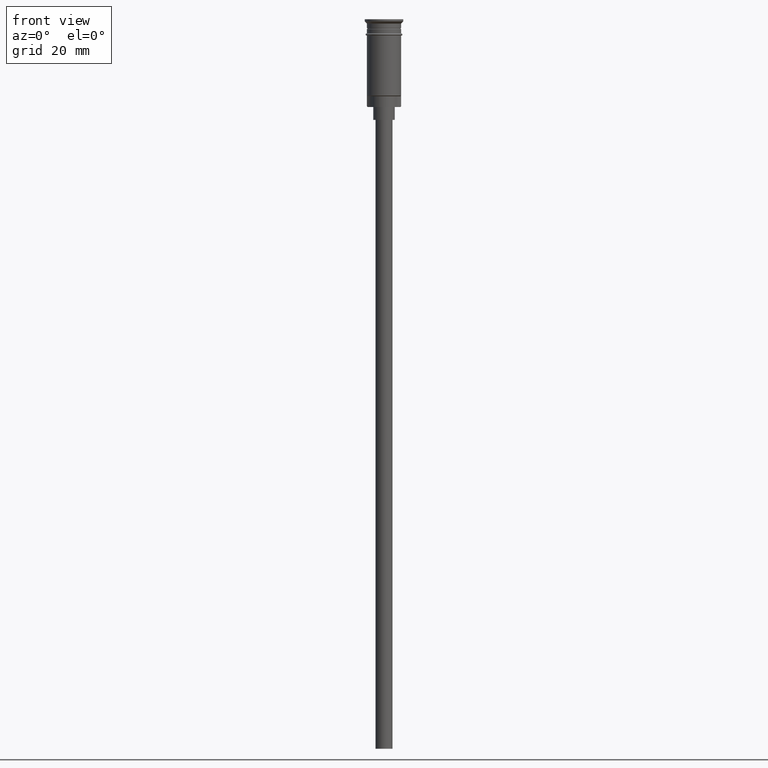
[diagram: clean part render]
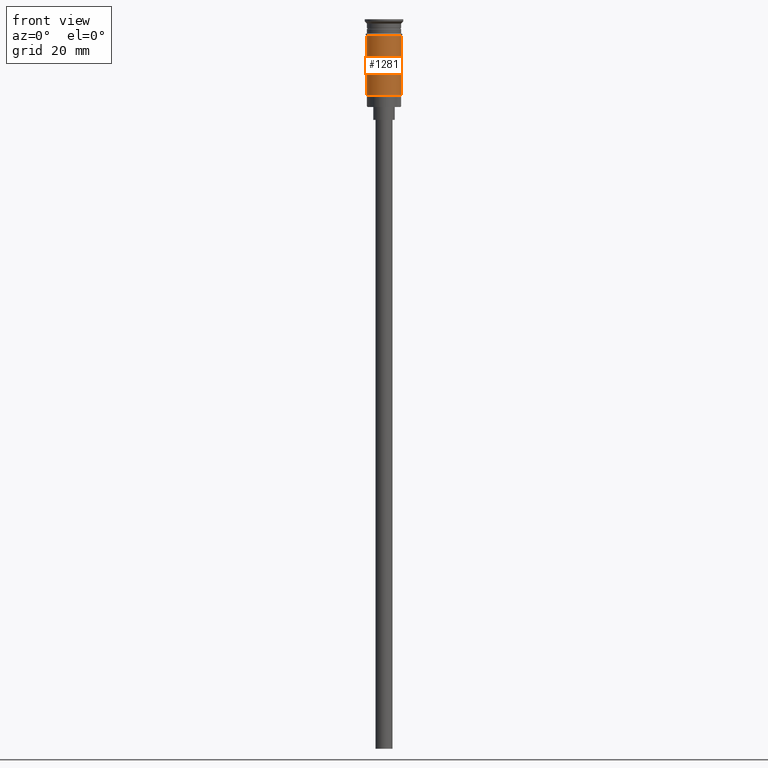
[diagram: same view with one face highlighted and labeled with its STEP entity id]
A machine part, front view. The second image highlights one B-rep face of the part: STEP entity #1281.
In plain terms, the highlighted cylindrical surface (edge-blend (fillet) strip) has radius 4 mm, axis along (-0, -0, 1).
Its self-contained STEP definition (entity closure, byte-faithful):
#16 = EDGE_CURVE ( 'NONE', #98, #976, #591, .T. ) ;
#96 = CARTESIAN_POINT ( 'NONE',  ( 4.000000000000000000, 4.898587196589412829E-16, -17.79999999999998295 ) ) ;
#98 = VERTEX_POINT ( 'NONE', #96 ) ;
#123 = CARTESIAN_POINT ( 'NONE',  ( -3.999999999999997335, 0.000000000000000000, -17.79999999999998295 ) ) ;
#199 = AXIS2_PLACEMENT_3D ( 'NONE', #843, #344, #454 ) ;
#239 = CARTESIAN_POINT ( 'NONE',  ( 0.000000000000000000, 0.000000000000000000, -17.79999999999998295 ) ) ;
#251 = FACE_OUTER_BOUND ( 'NONE', #1041, .T. ) ;
#254 = CIRCLE ( 'NONE', #199, 4.000000000000000000 ) ;
#303 = VERTEX_POINT ( 'NONE', #914 ) ;
#313 = CARTESIAN_POINT ( 'NONE',  ( 0.000000000000000000, 0.000000000000000000, 0.000000000000000000 ) ) ;
#335 = ORIENTED_EDGE ( 'NONE', *, *, #601, .T. ) ;
#344 = DIRECTION ( 'NONE',  ( -0.000000000000000000, -0.000000000000000000, 1.000000000000000000 ) ) ;
#454 = DIRECTION ( 'NONE',  ( 1.000000000000000000, 0.000000000000000000, 0.000000000000000000 ) ) ;
#457 = EDGE_CURVE ( 'NONE', #303, #976, #254, .T. ) ;
#514 = ORIENTED_EDGE ( 'NONE', *, *, #457, .F. ) ;
#568 = CARTESIAN_POINT ( 'NONE',  ( 4.000000000000000000, 0.000000000000000000, -3.799999999999998490 ) ) ;
#587 = AXIS2_PLACEMENT_3D ( 'NONE', #313, #1090, #604 ) ;
#591 = LINE ( 'NONE', #1097, #1367 ) ;
#601 = EDGE_CURVE ( 'NONE', #1284, #98, #738, .T. ) ;
#604 = DIRECTION ( 'NONE',  ( 1.000000000000000000, 0.000000000000000000, 0.000000000000000000 ) ) ;
#606 = AXIS2_PLACEMENT_3D ( 'NONE', #239, #616, #725 ) ;
#616 = DIRECTION ( 'NONE',  ( -0.000000000000000000, -0.000000000000000000, 1.000000000000000000 ) ) ;
#638 = DIRECTION ( 'NONE',  ( -0.000000000000000000, -0.000000000000000000, 1.000000000000000000 ) ) ;
#720 = DIRECTION ( 'NONE',  ( -0.000000000000000000, -0.000000000000000000, 1.000000000000000000 ) ) ;
#725 = DIRECTION ( 'NONE',  ( -1.000000000000000000, 0.000000000000000000, 0.000000000000000000 ) ) ;
#727 = CYLINDRICAL_SURFACE ( 'NONE', #587, 4.000000000000000000 ) ;
#738 = CIRCLE ( 'NONE', #606, 4.000000000000000000 ) ;
#765 = LINE ( 'NONE', #1390, #920 ) ;
#769 = EDGE_CURVE ( 'NONE', #1284, #303, #765, .T. ) ;
#843 = CARTESIAN_POINT ( 'NONE',  ( 0.000000000000000000, 0.000000000000000000, -3.799999999999998490 ) ) ;
#914 = CARTESIAN_POINT ( 'NONE',  ( -4.000000000000000000, 4.898587196589412829E-16, -3.799999999999998490 ) ) ;
#920 = VECTOR ( 'NONE', #638, 1000.000000000000000 ) ;
#976 = VERTEX_POINT ( 'NONE', #568 ) ;
#1041 = EDGE_LOOP ( 'NONE', ( #1250, #335, #1325, #514 ) ) ;
#1090 = DIRECTION ( 'NONE',  ( -0.000000000000000000, -0.000000000000000000, 1.000000000000000000 ) ) ;
#1097 = CARTESIAN_POINT ( 'NONE',  ( 4.000000000000000000, 0.000000000000000000, 0.000000000000000000 ) ) ;
#1250 = ORIENTED_EDGE ( 'NONE', *, *, #769, .F. ) ;
#1281 = ADVANCED_FACE ( 'NONE', ( #251 ), #727, .T. ) ;
#1284 = VERTEX_POINT ( 'NONE', #123 ) ;
#1325 = ORIENTED_EDGE ( 'NONE', *, *, #16, .T. ) ;
#1367 = VECTOR ( 'NONE', #720, 1000.000000000000000 ) ;
#1390 = CARTESIAN_POINT ( 'NONE',  ( -4.000000000000000000, 4.898587196589412829E-16, 0.000000000000000000 ) ) ;